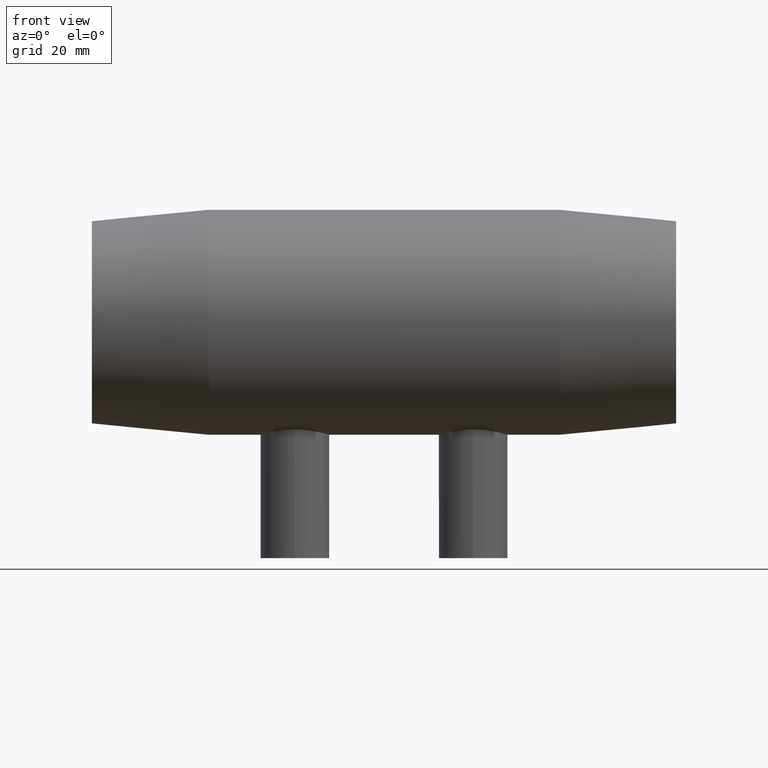
[diagram: clean part render]
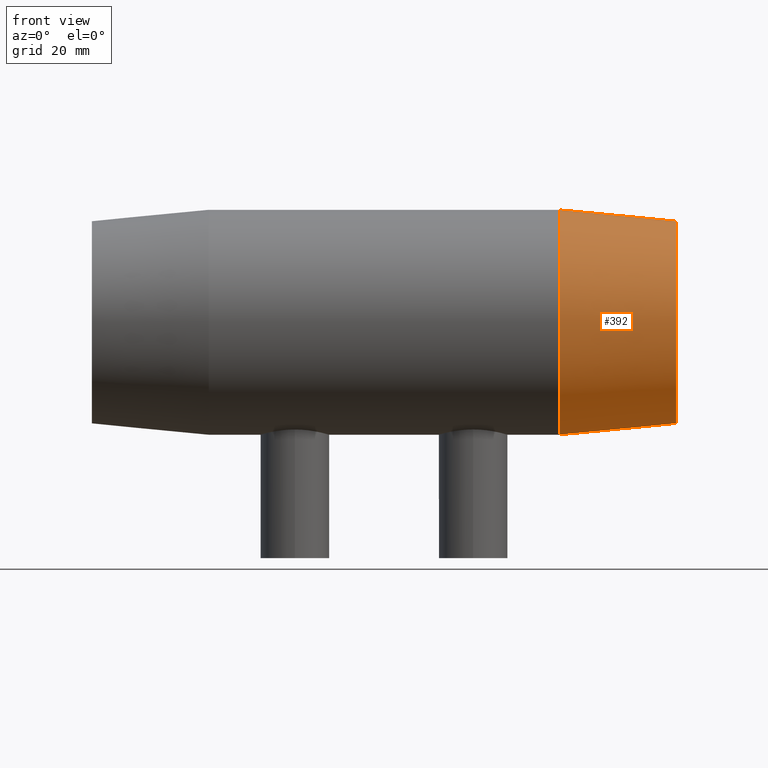
[diagram: same view with one face highlighted and labeled with its STEP entity id]
A machine part, front view. The second image highlights one B-rep face of the part: STEP entity #392.
In plain terms, the highlighted conical surface has half-angle 5.497 deg.
Its self-contained STEP definition (entity closure, byte-faithful):
#17=CONICAL_SURFACE('',#444,38.95,5.49745009090748);
#54=FACE_BOUND('',#176,.T.);
#55=FACE_BOUND('',#177,.T.);
#87=CIRCLE('',#442,41.);
#89=CIRCLE('',#445,36.9);
#122=FACE_OUTER_BOUND('',#175,.T.);
#175=EDGE_LOOP('',(#325));
#176=EDGE_LOOP('',(#326));
#177=EDGE_LOOP('',(#327));
#213=B_SPLINE_CURVE_WITH_KNOTS('',3,(#789,#790,#791,#792,#793,#794,#795,
#796,#797,#798,#799,#800,#801,#802,#803,#804,#805,#806,#807,#808,#809,#810,
#811,#812,#813,#814,#815,#816,#817,#818,#819,#820,#821,#822),
 .UNSPECIFIED.,.T.,.F.,(4,2,2,2,2,2,2,2,2,2,2,2,2,2,2,2,4),(0.,0.35602209679449,
0.71204419358898,1.06182628477897,1.41160837596895,1.76139046715894,2.11117255834893,
2.46719465514342,2.82321675193791,3.16146447122567,3.49971219051343,3.83980134969256,
4.17989050887169,4.51997966805081,4.86006882722994,5.1983165465177,5.53656426580547),
 .UNSPECIFIED.);
#233=VERTEX_POINT('',#788);
#235=VERTEX_POINT('',#861);
#237=VERTEX_POINT('',#866);
#269=EDGE_CURVE('',#233,#233,#213,.T.);
#271=EDGE_CURVE('',#235,#235,#87,.T.);
#273=EDGE_CURVE('',#237,#237,#89,.T.);
#325=ORIENTED_EDGE('',*,*,#273,.F.);
#326=ORIENTED_EDGE('',*,*,#269,.T.);
#327=ORIENTED_EDGE('',*,*,#271,.T.);
#392=ADVANCED_FACE('',(#122,#54,#55),#17,.T.);
#442=AXIS2_PLACEMENT_3D('',#862,#541,#542);
#444=AXIS2_PLACEMENT_3D('',#865,#545,#546);
#445=AXIS2_PLACEMENT_3D('',#867,#547,#548);
#541=DIRECTION('center_axis',(1.,0.,0.));
#542=DIRECTION('ref_axis',(0.,0.,-1.));
#545=DIRECTION('center_axis',(-1.,0.,0.));
#546=DIRECTION('ref_axis',(0.,1.,0.));
#547=DIRECTION('center_axis',(1.,0.,0.));
#548=DIRECTION('ref_axis',(0.,0.,-1.));
#788=CARTESIAN_POINT('',(85.4831672617493,37.8263711285099,9.17310561938486));
#789=CARTESIAN_POINT('Ctrl Pts',(85.4831672617491,37.82637112851,9.17310561938486));
#790=CARTESIAN_POINT('Ctrl Pts',(84.3018853952068,37.9368601157973,9.19989981401491));
#791=CARTESIAN_POINT('Ctrl Pts',(83.0487854844971,38.1163640946757,8.98152482946287));
#792=CARTESIAN_POINT('Ctrl Pts',(80.7522875493204,38.5494739761632,8.05116317295426));
#793=CARTESIAN_POINT('Ctrl Pts',(79.7080732701226,38.7996214669498,7.3395847867024));
#794=CARTESIAN_POINT('Ctrl Pts',(78.0743872571477,39.2322845098078,5.70282615049358));
#795=CARTESIAN_POINT('Ctrl Pts',(77.3692580585788,39.4442977549567,4.67267440459638));
#796=CARTESIAN_POINT('Ctrl Pts',(76.4301925541448,39.7377645235518,2.40448507669389));
#797=CARTESIAN_POINT('Ctrl Pts',(76.1966403464478,39.8165205300367,1.16594030396662));
#798=CARTESIAN_POINT('Ctrl Pts',(76.1966403464478,39.8165205300367,-1.16594030396662));
#799=CARTESIAN_POINT('Ctrl Pts',(76.4301925541448,39.7377645235517,-2.4044850766939));
#800=CARTESIAN_POINT('Ctrl Pts',(77.3692580585788,39.4442977549567,-4.67267440459639));
#801=CARTESIAN_POINT('Ctrl Pts',(78.0743872571477,39.2322845098078,-5.70282615049358));
#802=CARTESIAN_POINT('Ctrl Pts',(79.7080732701226,38.7996214669498,-7.3395847867024));
#803=CARTESIAN_POINT('Ctrl Pts',(80.7522875493204,38.5494739761632,-8.05116317295426));
#804=CARTESIAN_POINT('Ctrl Pts',(83.0487854844971,38.1163640946757,-8.98152482946287));
#805=CARTESIAN_POINT('Ctrl Pts',(84.3018853952068,37.9368601157973,-9.19989981401491));
#806=CARTESIAN_POINT('Ctrl Pts',(86.6054737162965,37.7213982959447,-9.14764912298936));
#807=CARTESIAN_POINT('Ctrl Pts',(87.8007700714036,37.666104856619,-8.89668174075734));
#808=CARTESIAN_POINT('Ctrl Pts',(89.9915910784673,37.6650176261856,-7.93456706222269));
#809=CARTESIAN_POINT('Ctrl Pts',(90.987166640629,37.7160093406769,-7.2235420150381));
#810=CARTESIAN_POINT('Ctrl Pts',(92.5567598701681,37.8383539921926,-5.60055533099966));
#811=CARTESIAN_POINT('Ctrl Pts',(93.2360039237725,37.917652568284,-4.57728565010471));
#812=CARTESIAN_POINT('Ctrl Pts',(94.135777238011,38.0342151413606,-2.34390134490362));
#813=CARTESIAN_POINT('Ctrl Pts',(94.3562686347066,38.0687628778804,-1.13363053059709));
#814=CARTESIAN_POINT('Ctrl Pts',(94.3562686347066,38.0687628778804,1.13363053059709));
#815=CARTESIAN_POINT('Ctrl Pts',(94.135777238011,38.0342151413606,2.34390134490362));
#816=CARTESIAN_POINT('Ctrl Pts',(93.2360039237725,37.917652568284,4.57728565010471));
#817=CARTESIAN_POINT('Ctrl Pts',(92.5567598701681,37.8383539921926,5.60055533099966));
#818=CARTESIAN_POINT('Ctrl Pts',(90.987166640629,37.7160093406769,7.2235420150381));
#819=CARTESIAN_POINT('Ctrl Pts',(89.9915910784673,37.6650176261856,7.93456706222269));
#820=CARTESIAN_POINT('Ctrl Pts',(87.8007700714036,37.666104856619,8.89668174075734));
#821=CARTESIAN_POINT('Ctrl Pts',(86.6054737162965,37.7213982959446,9.14764912298936));
#822=CARTESIAN_POINT('Ctrl Pts',(85.4831672617491,37.82637112851,9.17310561938486));
#861=CARTESIAN_POINT('',(63.9,41.,0.));
#862=CARTESIAN_POINT('Origin',(63.9,0.,0.));
#865=CARTESIAN_POINT('Origin',(85.2,0.,0.));
#866=CARTESIAN_POINT('',(106.5,36.9,0.));
#867=CARTESIAN_POINT('Origin',(106.5,0.,0.));